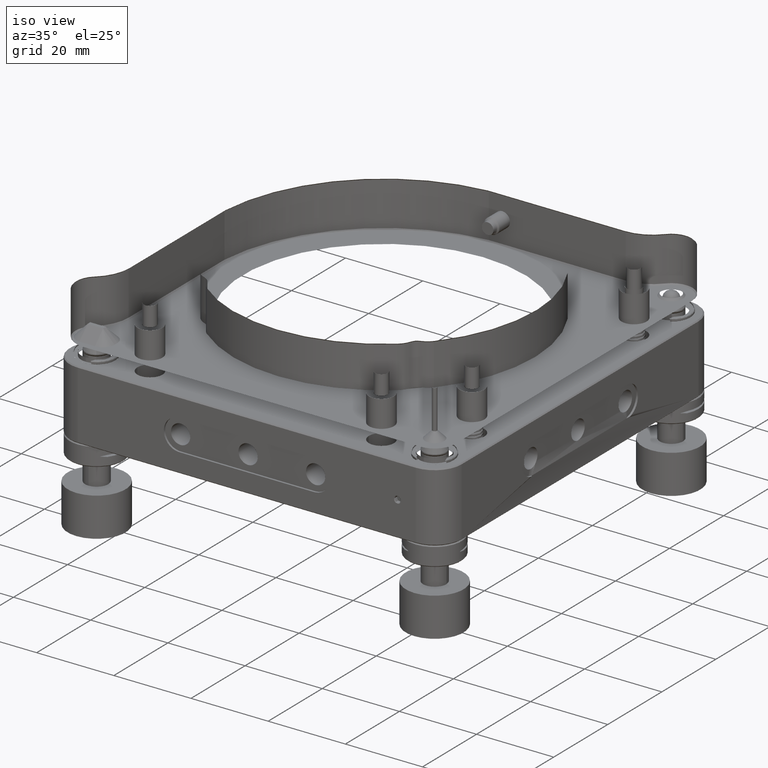
[diagram: clean part render]
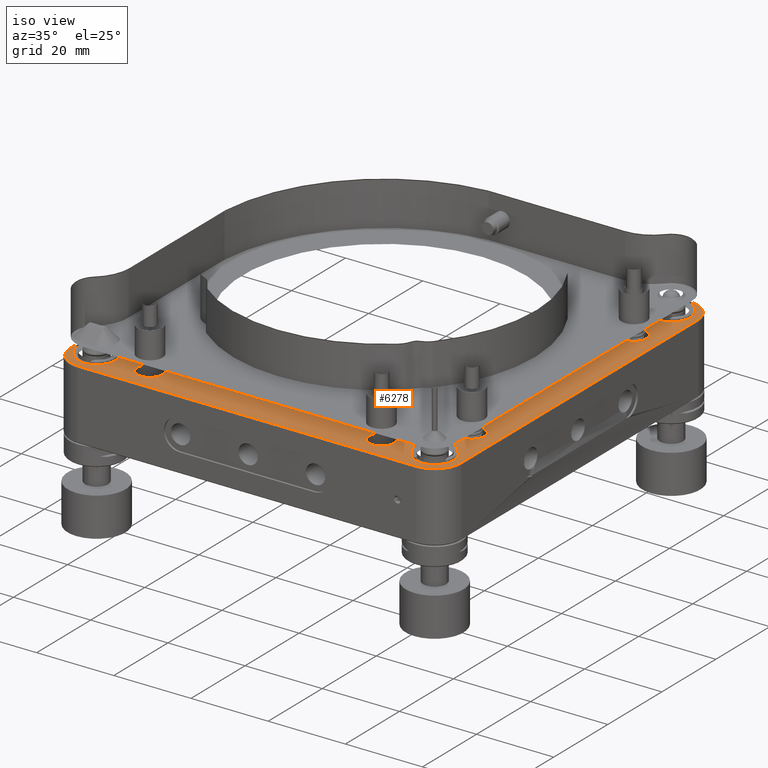
[diagram: same view with one face highlighted and labeled with its STEP entity id]
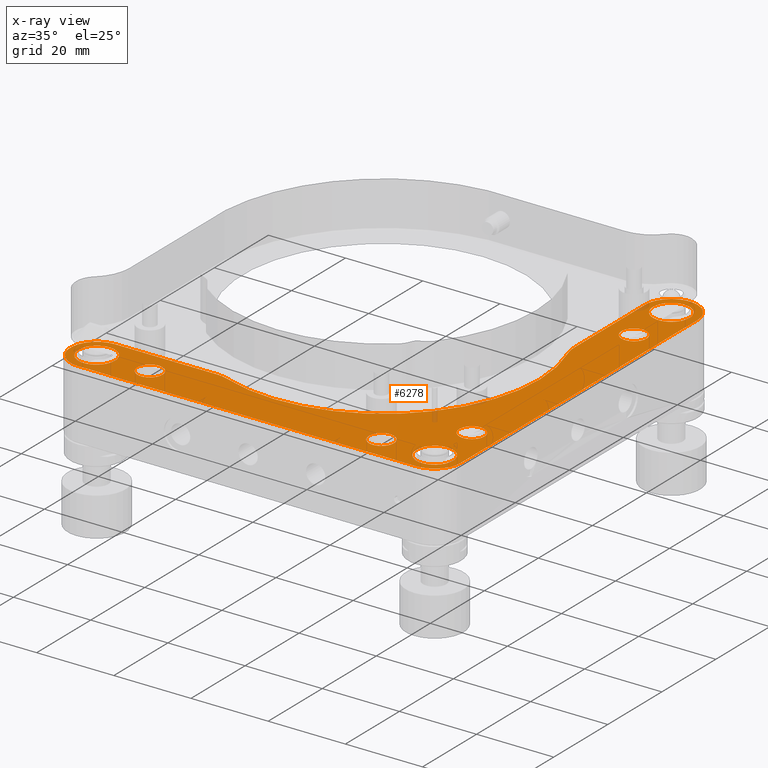
[diagram: x-ray of the same camera — body ghosted, the highlighted face saturated]
A machine part, iso view. The second image highlights one B-rep face of the part: STEP entity #6278.
The next image is the same camera in x-ray: the body ghosted, the highlighted face saturated — about 1% of this face is hidden behind the body in this view.
In plain terms, the highlighted planar face has unit normal (0, 0, 1).
Its self-contained STEP definition (entity closure, byte-faithful):
#12 = CARTESIAN_POINT ( 'NONE',  ( 47.59651432687579842, -46.67343432686198668, 9.000000000000007105 ) ) ;
#18 = AXIS2_PLACEMENT_3D ( 'NONE', #16891, #3433, #5997 ) ;
#59 = CARTESIAN_POINT ( 'NONE',  ( -41.68429196255694791, -39.54185982433703117, 9.000000000000003553 ) ) ;
#83 = CARTESIAN_POINT ( 'NONE',  ( -47.98439713549331032, -46.05805406400262569, 9.000000000000003553 ) ) ;
#173 = CARTESIAN_POINT ( 'NONE',  ( -46.33069932900261989, -47.82053226614686281, 9.000000000000003553 ) ) ;
#190 = CARTESIAN_POINT ( 'NONE',  ( 45.80657853214353281, -48.10669979792063344, 9.000000000000003553 ) ) ;
#201 = AXIS2_PLACEMENT_3D ( 'NONE', #1701, #8184, #5939 ) ;
#211 = VERTEX_POINT ( 'NONE', #10919 ) ;
#279 = CARTESIAN_POINT ( 'NONE',  ( 40.67289036228411447, -47.39035226864903905, 9.000000000000005329 ) ) ;
#328 = CARTESIAN_POINT ( 'NONE',  ( 39.49330020207312941, 41.79342146787220003, 9.000000000000003553 ) ) ;
#346 = DIRECTION ( 'NONE',  ( -1.000000000000000000, 0.000000000000000000, 0.000000000000000000 ) ) ;
#358 = CARTESIAN_POINT ( 'NONE',  ( 44.40367257876562235, -48.54993259778042614, 9.000000000000003553 ) ) ;
#380 = CARTESIAN_POINT ( 'NONE',  ( 26.74999999999998934, -43.79999999999999716, 9.000000000000003553 ) ) ;
#437 = CIRCLE ( 'NONE', #7497, 6.750000000017429613 ) ;
#445 = CARTESIAN_POINT ( 'NONE',  ( 40.92656567311966143, -47.59651432686166572, 9.000000000000001776 ) ) ;
#454 = EDGE_CURVE ( 'NONE', #8742, #3205, #6705, .T. ) ;
#534 = CARTESIAN_POINT ( 'NONE',  ( 39.05000000000001137, -43.79999999999999716, 9.000000000000003553 ) ) ;
#546 = AXIS2_PLACEMENT_3D ( 'NONE', #9938, #15339, #3216 ) ;
#594 = CARTESIAN_POINT ( 'NONE',  ( 42.29854848195957118, 39.29228683825713375, 9.000000000000003553 ) ) ;
#627 = CARTESIAN_POINT ( 'NONE',  ( 39.05000000000001137, -43.79999999999999716, 9.000000000000003553 ) ) ;
#681 = CARTESIAN_POINT ( 'NONE',  ( 42.12189704882112551, 39.35624815801423182, 9.000000000000005329 ) ) ;
#686 = VERTEX_POINT ( 'NONE', #6011 ) ;
#721 = CARTESIAN_POINT ( 'NONE',  ( 45.42523583424235056, -39.33637540043583414, 9.000000000000007105 ) ) ;
#808 = CARTESIAN_POINT ( 'NONE',  ( 45.51330696151428157, -39.36971392073352405, 9.000000000000003553 ) ) ;
#888 = CARTESIAN_POINT ( 'NONE',  ( -39.04999999999999005, -43.80000000000000426, 9.000000000000003553 ) ) ;
#896 = CARTESIAN_POINT ( 'NONE',  ( 44.54676974022938651, -39.09162921930206380, 9.000000000000003553 ) ) ;
#945 = VECTOR ( 'NONE', #9170, 1000.000000000000000 ) ;
#976 = CARTESIAN_POINT ( 'NONE',  ( -40.20964773134065240, -46.92710963770984023, 9.000000000000003553 ) ) ;
#987 = CARTESIAN_POINT ( 'NONE',  ( 39.65747229274133190, -41.47432705719561596, 9.000000000000003553 ) ) ;
#1034 = ORIENTED_EDGE ( 'NONE', *, *, #16131, .T. ) ;
#1047 = CARTESIAN_POINT ( 'NONE',  ( -46.53527064134317470, -39.91572909220285226, 9.000000000000007105 ) ) ;
#1061 = EDGE_LOOP ( 'NONE', ( #12968 ) ) ;
#1074 = CARTESIAN_POINT ( 'NONE',  ( 39.73816129198772984, 46.26382674027176023, 9.000000000000003553 ) ) ;
#1079 = CARTESIAN_POINT ( 'NONE',  ( 48.15748955266840881, 41.90245949543454174, 9.000000000000005329 ) ) ;
#1109 = CARTESIAN_POINT ( 'NONE',  ( 39.29231264066933704, -42.29848328568196081, 9.000000000000003553 ) ) ;
#1153 = CARTESIAN_POINT ( 'NONE',  ( -40.00348567313798753, -46.67343432688424798, 9.000000000000003553 ) ) ;
#1158 = CARTESIAN_POINT ( 'NONE',  ( 40.20964773135293768, 46.92710963771999388, 9.000000000000005329 ) ) ;
#1215 = CARTESIAN_POINT ( 'NONE',  ( -39.04999999999998295, -43.19580036840767434, 9.000000000000007105 ) ) ;
#1240 = FACE_BOUND ( 'NONE', #1722, .T. ) ;
#1298 = CARTESIAN_POINT ( 'NONE',  ( -48.23028193245022521, -42.08668256051229406, 9.000000000000007105 ) ) ;
#1325 = CARTESIAN_POINT ( 'NONE',  ( -41.92165415749143875, -48.16316061777354207, 9.000000000000001776 ) ) ;
#1390 = CARTESIAN_POINT ( 'NONE',  ( -45.62285434901833980, -39.41364699758191392, 9.000000000000003553 ) ) ;
#1401 = CARTESIAN_POINT ( 'NONE',  ( 48.30768735933067859, 42.29848328569064364, 9.000000000000000000 ) ) ;
#1413 = CARTESIAN_POINT ( 'NONE',  ( -44.10183628939198996, -48.55003370110978977, 9.000000000000005329 ) ) ;
#1417 = CARTESIAN_POINT ( 'NONE',  ( 47.98439713548867047, 46.05805406401060509, 9.000000000000001776 ) ) ;
#1501 = DIRECTION ( 'NONE',  ( -1.000000000000000000, 0.000000000000000000, 0.000000000000000000 ) ) ;
#1506 = CARTESIAN_POINT ( 'NONE',  ( 46.12567294280011509, 47.94252770726573942, 9.000000000000003553 ) ) ;
#1520 = CARTESIAN_POINT ( 'NONE',  ( 41.68429196256742841, -48.05814017567163177, 9.000000000000003553 ) ) ;
#1560 = DIRECTION ( 'NONE',  ( -0.000000000000000000, 0.000000000000000000, -1.000000000000000000 ) ) ;
#1581 = CARTESIAN_POINT ( 'NONE',  ( 45.80657853212729691, 39.49330020207326442, 9.000000000000005329 ) ) ;
#1592 = CARTESIAN_POINT ( 'NONE',  ( -45.52981354115004820, -48.22387003971916641, 9.000000000000005329 ) ) ;
#1605 = ORIENTED_EDGE ( 'NONE', *, *, #10644, .T. ) ;
#1610 = CARTESIAN_POINT ( 'NONE',  ( 42.54782795445914445, -48.38676546408353119, 9.000000000000005329 ) ) ;
#1635 = CIRCLE ( 'NONE', #6426, 9.749999999999994671 ) ;
#1664 = CARTESIAN_POINT ( 'NONE',  ( 42.54782795444975818, 39.21323453591647024, 9.000000000000005329 ) ) ;
#1674 = CARTESIAN_POINT ( 'NONE',  ( -43.19632742121601154, -48.54993259778045456, 9.000000000000005329 ) ) ;
#1679 = CARTESIAN_POINT ( 'NONE',  ( 48.10669979792616857, 45.80657853213092778, 9.000000000000000000 ) ) ;
#1692 = CARTESIAN_POINT ( 'NONE',  ( 40.32541900290380710, -47.04295968162963248, 9.000000000000003553 ) ) ;
#1701 = CARTESIAN_POINT ( 'NONE',  ( 46.80000000000002558, 17.59999999999999076, 9.000000000000000000 ) ) ;
#1722 = EDGE_LOOP ( 'NONE', ( #14655 ) ) ;
#1748 = CARTESIAN_POINT ( 'NONE',  ( 40.92656567312167937, 40.00348567313209003, 9.000000000000005329 ) ) ;
#1831 = CARTESIAN_POINT ( 'NONE',  ( 39.73651547129356487, 41.33494950416512381, 9.000000000000005329 ) ) ;
#1862 = CARTESIAN_POINT ( 'NONE',  ( 46.46634424494570936, -47.73185075308202840, 9.000000000000005329 ) ) ;
#2005 = CARTESIAN_POINT ( 'NONE',  ( 44.40367257877993268, 39.05006740221955397, 9.000000000000003553 ) ) ;
#2043 = CARTESIAN_POINT ( 'NONE',  ( 39.73816129199217784, -41.33617325972466006, 9.000000000000007105 ) ) ;
#2134 = CARTESIAN_POINT ( 'NONE',  ( 42.03401065401241254, -39.39045149390793199, 9.000000000000005329 ) ) ;
#2166 = CARTESIAN_POINT ( 'NONE',  ( 43.79999999999999716, -43.79999999999999716, 8.999999999975113241 ) ) ;
#2253 = DIRECTION ( 'NONE',  ( -0.000000000000000000, -0.000000000000000000, 1.000000000000000000 ) ) ;
#2273 = ORIENTED_EDGE ( 'NONE', *, *, #6785, .T. ) ;
#2307 = CARTESIAN_POINT ( 'NONE',  ( 41.79342146784929213, 48.10669979791553885, 9.000000000000005329 ) ) ;
#2313 = CARTESIAN_POINT ( 'NONE',  ( 41.06472935866566587, -39.91572909219676291, 9.000000000000005329 ) ) ;
#2366 = CARTESIAN_POINT ( 'NONE',  ( -48.38672123137696701, -42.54771618940385025, 9.000000000000003553 ) ) ;
#2393 = CARTESIAN_POINT ( 'NONE',  ( 42.01425878586120177, 48.20159123449366945, 9.000000000000005329 ) ) ;
#2394 = CARTESIAN_POINT ( 'NONE',  ( -14.16799999999999926, -37.67400000000003502, 9.000000000000005329 ) ) ;
#2400 = CARTESIAN_POINT ( 'NONE',  ( 47.86348452870377201, -41.33494950415840208, 9.000000000000003553 ) ) ;
#2455 = CARTESIAN_POINT ( 'NONE',  ( -47.94252770725370993, -41.47432705718230750, 9.000000000000005329 ) ) ;
#2463 = ORIENTED_EDGE ( 'NONE', *, *, #16204, .T. ) ;
#2477 = FACE_BOUND ( 'NONE', #11939, .T. ) ;
#2481 = CARTESIAN_POINT ( 'NONE',  ( 39.21327876862304862, 45.05228381057598597, 9.000000000000001776 ) ) ;
#2497 = EDGE_CURVE ( 'NONE', #8098, #4835, #5370, .T. ) ;
#2539 = CARTESIAN_POINT ( 'NONE',  ( -39.61560286451778268, -41.54194593596926666, 9.000000000000001776 ) ) ;
#2621 = CARTESIAN_POINT ( 'NONE',  ( -39.73651547129775707, -41.33494950415123270, 9.000000000000003553 ) ) ;
#2711 = CARTESIAN_POINT ( 'NONE',  ( -46.46634424494860838, -39.86814924691985595, 9.000000000000005329 ) ) ;
#2742 = CARTESIAN_POINT ( 'NONE',  ( 45.69754050455416206, 48.15748955267440579, 9.000000000000003553 ) ) ;
#2816 = CARTESIAN_POINT ( 'NONE',  ( 47.82053226614786468, 41.26930067099888788, 9.000000000000003553 ) ) ;
#2828 = CARTESIAN_POINT ( 'NONE',  ( -45.69754050456964478, -48.15748955266568032, 9.000000000000007105 ) ) ;
#2913 = CARTESIAN_POINT ( 'NONE',  ( -47.86348452870857528, -46.26505049583270335, 9.000000000000001776 ) ) ;
#2942 = CARTESIAN_POINT ( 'NONE',  ( -43.79999999999998295, -37.04999999999434834, 8.999999999995518252 ) ) ;
#2988 = CARTESIAN_POINT ( 'NONE',  ( 45.58574121413445823, 39.39840876550429272, 9.000000000000005329 ) ) ;
#3014 = CARTESIAN_POINT ( 'NONE',  ( 39.41364699758121759, -45.62285434901606607, 9.000000000000003553 ) ) ;
#3063 = LINE ( 'NONE', #12359, #15646 ) ;
#3081 = CARTESIAN_POINT ( 'NONE',  ( -47.73185075307859648, -46.46634424495277926, 9.000000000000005329 ) ) ;
#3089 = ORIENTED_EDGE ( 'NONE', *, *, #9333, .T. ) ;
#3187 = CARTESIAN_POINT ( 'NONE',  ( 39.49330020207239755, -45.80657853212947828, 9.000000000000001776 ) ) ;
#3205 = VERTEX_POINT ( 'NONE', #6367 ) ;
#3216 = DIRECTION ( 'NONE',  ( -1.000000000000000000, 0.000000000000000000, 0.000000000000000000 ) ) ;
#3352 = DIRECTION ( 'NONE',  ( -0.000000000000000000, -0.000000000000000000, -1.000000000000000000 ) ) ;
#3372 = EDGE_CURVE ( 'NONE', #15276, #5943, #9492, .T. ) ;
#3377 = CARTESIAN_POINT ( 'NONE',  ( 46.67343432687420091, -40.00348567313218240, 9.000000000000001776 ) ) ;
#3401 = CARTESIAN_POINT ( 'NONE',  ( 39.05000000000000426, 43.80000000000001137, 9.000000000000003553 ) ) ;
#3422 = CARTESIAN_POINT ( 'NONE',  ( 39.61560286451043567, 41.54194593599361696, 9.000000000000007105 ) ) ;
#3433 = DIRECTION ( 'NONE',  ( -0.000000000000000000, -0.000000000000000000, 1.000000000000000000 ) ) ;
#3463 = CARTESIAN_POINT ( 'NONE',  ( 41.97714565097493988, -39.41364699758645429, 9.000000000000007105 ) ) ;
#3475 = VERTEX_POINT ( 'NONE', #6039 ) ;
#3554 = CARTESIAN_POINT ( 'NONE',  ( 46.12567294280450625, -39.65747229273808472, 9.000000000000005329 ) ) ;
#3577 = CARTESIAN_POINT ( 'NONE',  ( 48.24374374582074410, -45.47812340817389298, 9.000000000000005329 ) ) ;
#3640 = CARTESIAN_POINT ( 'NONE',  ( 45.30145151803804282, -39.29228683825713375, 9.000000000000005329 ) ) ;
#3696 = CARTESIAN_POINT ( 'NONE',  ( -48.24374374582074410, -42.12187659182613686, 9.000000000000005329 ) ) ;
#3720 = CARTESIAN_POINT ( 'NONE',  ( -41.33494950415676072, -47.86348452870273462, 9.000000000000005329 ) ) ;
#3729 = CARTESIAN_POINT ( 'NONE',  ( 42.61281334777885377, -39.16123600341019539, 9.000000000000003553 ) ) ;
#3746 = CARTESIAN_POINT ( 'NONE',  ( 37.04999999998945270, 17.59999999999999076, 9.000000000000000000 ) ) ;
#3755 = CARTESIAN_POINT ( 'NONE',  ( 47.94252770725439206, -46.12567294281597441, 9.000000000000001776 ) ) ;
#3760 = CARTESIAN_POINT ( 'NONE',  ( 39.09168819624420621, -43.05308123970210232, 9.000000000000005329 ) ) ;
#3777 = CARTESIAN_POINT ( 'NONE',  ( 0.000000000000000000, -50.55000000000465832, 9.000000000000003553 ) ) ;
#3784 = CARTESIAN_POINT ( 'NONE',  ( -39.16116852331781928, -42.61298374493471641, 9.000000000000003553 ) ) ;
#3815 = CARTESIAN_POINT ( 'NONE',  ( 45.42523583423942313, 48.26362459956419571, 9.000000000000003553 ) ) ;
#3874 = CARTESIAN_POINT ( 'NONE',  ( -42.29854848195564188, -39.29228683825712665, 9.000000000000005329 ) ) ;
#3897 = CARTESIAN_POINT ( 'NONE',  ( -39.33638922315664388, -45.42527076081753989, 9.000000000000001776 ) ) ;
#3901 = CARTESIAN_POINT ( 'NONE',  ( 41.06472935865765095, 47.68427090779803024, 9.000000000000007105 ) ) ;
#3906 = EDGE_CURVE ( 'NONE', #12146, #8592, #3063, .T. ) ;
#3963 = CARTESIAN_POINT ( 'NONE',  ( -48.22387003971913799, -42.07018645884960506, 9.000000000000003553 ) ) ;
#3990 = CARTESIAN_POINT ( 'NONE',  ( 44.10183628937970468, 48.55003370110979688, 9.000000000000001776 ) ) ;
#4050 = CARTESIAN_POINT ( 'NONE',  ( -47.82053226614524277, -41.26930067099628019, 9.000000000000005329 ) ) ;
#4155 = CARTESIAN_POINT ( 'NONE',  ( 48.23028193245023942, 42.08668256051358014, 9.000000000000005329 ) ) ;
#4167 = DIRECTION ( 'NONE',  ( -0.000000000000000000, -0.000000000000000000, 1.000000000000000000 ) ) ;
#4168 = CARTESIAN_POINT ( 'NONE',  ( -48.10669979792965734, -45.80657853212495922, 9.000000000000005329 ) ) ;
#4189 = CARTESIAN_POINT ( 'NONE',  ( 37.67400000000002791, 14.16799999999999926, 9.000000000000005329 ) ) ;
#4266 = VERTEX_POINT ( 'NONE', #4189 ) ;
#4271 = CARTESIAN_POINT ( 'NONE',  ( 44.98718665219662682, -48.43876399658982024, 9.000000000000001776 ) ) ;
#4321 = CARTESIAN_POINT ( 'NONE',  ( 48.22387003971882535, 42.07018645884944874, 9.000000000000005329 ) ) ;
#4333 = CARTESIAN_POINT ( 'NONE',  ( -48.20159123449623451, -45.58574121413405322, 9.000000000000003553 ) ) ;
#4353 = CARTESIAN_POINT ( 'NONE',  ( 45.67834584251129115, -48.16316061777275337, 9.000000000000003553 ) ) ;
#4407 = CARTESIAN_POINT ( 'NONE',  ( 39.05000000000000426, 43.19580036839550274, 9.000000000000005329 ) ) ;
#4421 = CARTESIAN_POINT ( 'NONE',  ( 46.26382674027261288, 47.86183870801235685, 9.000000000000003553 ) ) ;
#4577 = CARTESIAN_POINT ( 'NONE',  ( 39.41364699758145207, 41.97714565098453221, 9.000000000000005329 ) ) ;
#4587 = LINE ( 'NONE', #11133, #9332 ) ;
#4605 = CARTESIAN_POINT ( 'NONE',  ( 39.39045360266084117, -45.56599467089863964, 9.000000000000001776 ) ) ;
#4675 = CARTESIAN_POINT ( 'NONE',  ( 37.04999999997887983, 0.000000000000000000, 9.000000000000003553 ) ) ;
#4708 = CARTESIAN_POINT ( 'NONE',  ( 45.69754050455735950, -39.44251044732838807, 9.000000000000001776 ) ) ;
#4809 = AXIS2_PLACEMENT_3D ( 'NONE', #9631, #4167, #1501 ) ;
#4835 = VERTEX_POINT ( 'NONE', #8303 ) ;
#4874 = CARTESIAN_POINT ( 'NONE',  ( 41.92165415748196011, -39.43683938223187369, 9.000000000000005329 ) ) ;
#4959 = CARTESIAN_POINT ( 'NONE',  ( 44.10183628938687406, -39.04996629889022586, 9.000000000000003553 ) ) ;
#4996 = DIRECTION ( 'NONE',  ( -1.000000000000000000, 0.000000000000000000, 0.000000000000000000 ) ) ;
#5050 = CARTESIAN_POINT ( 'NONE',  ( 40.93275040265881159, -40.01206006587786845, 9.000000000000003553 ) ) ;
#5111 = CARTESIAN_POINT ( 'NONE',  ( -39.39045360266081275, -42.03400532910132625, 9.000000000000007105 ) ) ;
#5137 = CARTESIAN_POINT ( 'NONE',  ( 45.05217204553679977, 48.38676546408355961, 9.000000000000003553 ) ) ;
#5142 = CARTESIAN_POINT ( 'NONE',  ( 46.66724959734122535, 40.01206006587355546, 9.000000000000003553 ) ) ;
#5221 = CARTESIAN_POINT ( 'NONE',  ( -39.65747229273958396, -46.12567294280608365, 9.000000000000005329 ) ) ;
#5249 = DIRECTION ( 'NONE',  ( -0.000000000000000000, -0.000000000000000000, -1.000000000000000000 ) ) ;
#5285 = CARTESIAN_POINT ( 'NONE',  ( -48.05814017566024177, -41.68429196255195279, 9.000000000000003553 ) ) ;
#5308 = FACE_BOUND ( 'NONE', #12972, .T. ) ;
#5312 = CARTESIAN_POINT ( 'NONE',  ( 41.54194593596302809, 47.98439713547445962, 9.000000000000003553 ) ) ;
#5364 = ORIENTED_EDGE ( 'NONE', *, *, #8128, .T. ) ;
#5370 = LINE ( 'NONE', #3777, #945 ) ;
#5374 = CARTESIAN_POINT ( 'NONE',  ( -40.01206006588360964, -40.93275040265454123, 9.000000000000005329 ) ) ;
#5386 = CIRCLE ( 'NONE', #18, 6.750000000017415402 ) ;
#5391 = VERTEX_POINT ( 'NONE', #14305 ) ;
#5396 = CARTESIAN_POINT ( 'NONE',  ( -48.55000000000001137, -44.40419963159234840, 9.000000000000007105 ) ) ;
#5400 = CARTESIAN_POINT ( 'NONE',  ( 40.93275040264623499, 47.58793993411392620, 9.000000000000003553 ) ) ;
#5413 = CARTESIAN_POINT ( 'NONE',  ( 47.39035226862685590, -46.92710963773387078, 9.000000000000005329 ) ) ;
#5462 = CARTESIAN_POINT ( 'NONE',  ( -48.15748955266568743, -41.90245949543306381, 9.000000000000007105 ) ) ;
#5505 = CARTESIAN_POINT ( 'NONE',  ( 48.54999999999999716, -43.79999999999999716, 9.000000000000003553 ) ) ;
#5537 = ORIENTED_EDGE ( 'NONE', *, *, #14066, .T. ) ;
#5541 = DIRECTION ( 'NONE',  ( 1.000000000000000000, 0.000000000000000000, 0.000000000000000000 ) ) ;
#5654 = AXIS2_PLACEMENT_3D ( 'NONE', #13671, #1560, #5541 ) ;
#5677 = CARTESIAN_POINT ( 'NONE',  ( 42.07018645884850372, -48.22387003971835640, 9.000000000000007105 ) ) ;
#5696 = VERTEX_POINT ( 'NONE', #380 ) ;
#5724 = CARTESIAN_POINT ( 'NONE',  ( 39.39840876550426430, 42.01425878586545082, 9.000000000000007105 ) ) ;
#5756 = CARTESIAN_POINT ( 'NONE',  ( 42.08669303848622434, -48.23028607926646316, 9.000000000000001776 ) ) ;
#5828 = CARTESIAN_POINT ( 'NONE',  ( 45.91570803742568785, 48.05814017567551844, 9.000000000000003553 ) ) ;
#5874 = EDGE_LOOP ( 'NONE', ( #5537 ) ) ;
#5912 = CIRCLE ( 'NONE', #10732, 3.250000000000002665 ) ;
#5928 = CARTESIAN_POINT ( 'NONE',  ( 41.33617325972395662, -47.86183870801038154, 9.000000000000003553 ) ) ;
#5939 = DIRECTION ( 'NONE',  ( 1.423362852083534886E-15, 1.000000000000000000, -1.779203565104418607E-16 ) ) ;
#5943 = VERTEX_POINT ( 'NONE', #9133 ) ;
#5987 = CARTESIAN_POINT ( 'NONE',  ( 43.05323025976517926, 39.09162921930207091, 9.000000000000005329 ) ) ;
#5997 = DIRECTION ( 'NONE',  ( -1.000000000000000000, 0.000000000000000000, 0.000000000000000000 ) ) ;
#6011 = CARTESIAN_POINT ( 'NONE',  ( 37.04999999997966142, 43.80000000000000426, 8.999999999984925836 ) ) ;
#6028 = CARTESIAN_POINT ( 'NONE',  ( 41.33494950414434044, -39.73651547130437933, 9.000000000000005329 ) ) ;
#6039 = CARTESIAN_POINT ( 'NONE',  ( -33.25000000000001421, -43.79999999999999005, 9.000000000000003553 ) ) ;
#6075 = CARTESIAN_POINT ( 'NONE',  ( 40.67289036230039301, 40.20964773133047743, 9.000000000000005329 ) ) ;
#6116 = CARTESIAN_POINT ( 'NONE',  ( 47.73185075308096970, -41.13365575505164173, 9.000000000000001776 ) ) ;
#6228 = CARTESIAN_POINT ( 'NONE',  ( -43.80000000000000426, -50.55000000000407567, 8.999999999997472244 ) ) ;
#6258 = CARTESIAN_POINT ( 'NONE',  ( -48.50831180375581653, -43.05308123970396394, 9.000000000000003553 ) ) ;
#6278 = ADVANCED_FACE ( 'NONE', ( #12031, #1240, #9199, #6638, #14770, #10703, #2477, #5308 ), #15751, .T. ) ;
#6281 = CARTESIAN_POINT ( 'NONE',  ( -40.73882732539129847, -47.43857027040314733, 9.000000000000000000 ) ) ;
#6291 = CARTESIAN_POINT ( 'NONE',  ( 47.43857027039616980, -40.73882732538063323, 9.000000000000005329 ) ) ;
#6299 = EDGE_CURVE ( 'NONE', #15872, #5391, #15850, .T. ) ;
#6367 = CARTESIAN_POINT ( 'NONE',  ( 48.54999999999999716, -43.79999999999999716, 9.000000000000003553 ) ) ;
#6369 = CARTESIAN_POINT ( 'NONE',  ( -40.55704031837549906, -47.27458099709926387, 9.000000000000005329 ) ) ;
#6373 = CARTESIAN_POINT ( 'NONE',  ( 39.05000000000001137, 44.10192144369531064, 9.000000000000007105 ) ) ;
#6379 = CARTESIAN_POINT ( 'NONE',  ( 39.37612996028130397, -42.07018645884840424, 9.000000000000003553 ) ) ;
#6380 = CARTESIAN_POINT ( 'NONE',  ( 44.98718665219873003, 39.16123600341018829, 9.000000000000001776 ) ) ;
#6406 = CARTESIAN_POINT ( 'NONE',  ( 48.23028193245021811, -45.51331743948770736, 9.000000000000007105 ) ) ;
#6426 = AXIS2_PLACEMENT_3D ( 'NONE', #7262, #12655, #11331 ) ;
#6438 = CARTESIAN_POINT ( 'NONE',  ( -39.91572909220039378, -41.06472935866295160, 9.000000000000003553 ) ) ;
#6464 = CARTESIAN_POINT ( 'NONE',  ( 42.03401065401215675, 48.20954850609209785, 9.000000000000005329 ) ) ;
#6470 = CARTESIAN_POINT ( 'NONE',  ( 47.86183870800705620, 41.33617325971749068, 9.000000000000005329 ) ) ;
#6526 = CARTESIAN_POINT ( 'NONE',  ( -47.86183870800468299, -41.33617325971619039, 9.000000000000007105 ) ) ;
#6553 = CARTESIAN_POINT ( 'NONE',  ( 41.97714565097646755, 48.18635300241459163, 9.000000000000003553 ) ) ;
#6614 = CARTESIAN_POINT ( 'NONE',  ( -39.41364699758339896, -41.97714565097812311, 9.000000000000005329 ) ) ;
#6638 = FACE_BOUND ( 'NONE', #16284, .T. ) ;
#6697 = CARTESIAN_POINT ( 'NONE',  ( -40.32541900290403447, -40.55704031837543511, 9.000000000000005329 ) ) ;
#6705 = B_SPLINE_CURVE_WITH_KNOTS ( 'NONE', 3,
 ( #15883, #10660, #3760, #9152, #1109, #14547, #11896, #14725, #6379, #15586, #14250, #987, #2043, #17093, #15853, #11774, #17011, #10450, #5050, #2313, #11682, #6028, #11426, #10096, #4874, #3463, #12926, #2134, #3729, #16836, #4959, #896, #14338, #3640, #721, #12839, #808, #9029, #4708, #10355, #3554, #8941, #15496, #3377, #7706, #8765, #6291, #15671, #13190, #6116, #2400, #8852, #16923, #17182, #14161, #15761, #7439, #14424, #7794, #9120 ),
 .UNSPECIFIED., .F., .F.,
 ( 4, 1, 1, 1, 1, 2, 2, 1, 2, 2, 2, 1, 2, 2, 1, 1, 1, 2, 2, 2, 1, 1, 1, 1, 2, 2, 1, 2, 2, 2, 1, 2, 2, 1, 1, 1, 2, 2, 4 ),
 ( 0.000000000000000000, 0.06250000000002489675, 0.09375000000003820555, 0.1093750000000448669, 0.1171875000000475037, 0.1210937500000488221, 0.1250000000000501543, 0.1562500000000569544, 0.1718750000000594802, 0.1875000000000619782, 0.2500000000000730527, 0.2812500000000781597, 0.2968750000000807132, 0.3125000000000832667, 0.3437500000000891509, 0.3593750000000911493, 0.3671875000000918710, 0.3710937500000919820, 0.3750000000000920930, 0.5000000000000413003, 0.5625000000000158762, 0.5937500000000037748, 0.6093749999999967804, 0.6171874999999935607, 0.6210937499999925615, 0.6249999999999915623, 0.6562499999999908962, 0.6718749999999911182, 0.6874999999999913403, 0.7499999999999888978, 0.7812499999999885647, 0.7968749999999884537, 0.8124999999999883427, 0.8437499999999880096, 0.8593749999999881206, 0.8671874999999891198, 0.8710937499999895639, 0.8749999999999900080, 1.000000000000000000 ),
 .UNSPECIFIED. ) ;
#6710 = ORIENTED_EDGE ( 'NONE', *, *, #12554, .T. ) ;
#6723 = CARTESIAN_POINT ( 'NONE',  ( -47.43857027040134966, -46.86117267461418834, 9.000000000000005329 ) ) ;
#6740 = CARTESIAN_POINT ( 'NONE',  ( 48.30768735933067859, -45.30151671431720217, 9.000000000000005329 ) ) ;
#6785 = EDGE_CURVE ( 'NONE', #4835, #9904, #437, .T. ) ;
#6786 = CARTESIAN_POINT ( 'NONE',  ( -41.47432705718622259, -39.65747229274413144, 9.000000000000005329 ) ) ;
#6893 = CARTESIAN_POINT ( 'NONE',  ( -45.51330696151490685, -48.23028607926647027, 9.000000000000003553 ) ) ;
#6909 = CARTESIAN_POINT ( 'NONE',  ( 39.73651547129298223, -46.26505049583616369, 9.000000000000003553 ) ) ;
#6938 = CARTESIAN_POINT ( 'NONE',  ( 43.80000000000000426, -29.99999999999997158, 9.000000000000003553 ) ) ;
#6970 = CARTESIAN_POINT ( 'NONE',  ( 45.67834584250184804, 39.43683938222367402, 9.000000000000001776 ) ) ;
#6979 = CARTESIAN_POINT ( 'NONE',  ( -47.68427090780153321, -46.53527064133972146, 9.000000000000003553 ) ) ;
#6997 = CARTESIAN_POINT ( 'NONE',  ( 42.17476416575931353, -48.26362459956416728, 9.000000000000003553 ) ) ;
#7048 = CARTESIAN_POINT ( 'NONE',  ( 41.47432705719928947, 39.65747229273750207, 9.000000000000003553 ) ) ;
#7060 = CARTESIAN_POINT ( 'NONE',  ( -42.01425878586340446, -48.20159123449483474, 9.000000000000001776 ) ) ;
#7064 = CARTESIAN_POINT ( 'NONE',  ( 48.18635300241830777, 45.62285434901659897, 9.000000000000003553 ) ) ;
#7078 = CARTESIAN_POINT ( 'NONE',  ( 39.05000000000000426, -44.40419963159425976, 9.000000000000003553 ) ) ;
#7132 = CARTESIAN_POINT ( 'NONE',  ( 39.16116852331781928, 42.61298374492253060, 9.000000000000005329 ) ) ;
#7167 = CARTESIAN_POINT ( 'NONE',  ( 46.05805406402738100, -47.98439713548127372, 9.000000000000003553 ) ) ;
#7221 = CARTESIAN_POINT ( 'NONE',  ( 39.39045360266081985, 42.03400532910170284, 9.000000000000005329 ) ) ;
#7255 = CARTESIAN_POINT ( 'NONE',  ( 46.26505049584687868, -47.86348452870169012, 9.000000000000007105 ) ) ;
#7260 = CIRCLE ( 'NONE', #11780, 3.250000000000002665 ) ;
#7262 = CARTESIAN_POINT ( 'NONE',  ( -17.59999999999999076, -46.80000000000002558, 8.999999999999996447 ) ) ;
#7307 = CARTESIAN_POINT ( 'NONE',  ( -17.59999999999998366, -37.05000000000002558, 8.999999999999998224 ) ) ;
#7314 = CARTESIAN_POINT ( 'NONE',  ( 42.07018645884804897, 39.37612996028165924, 9.000000000000005329 ) ) ;
#7398 = CARTESIAN_POINT ( 'NONE',  ( 41.90245949544541304, 39.44251044732796174, 9.000000000000005329 ) ) ;
#7439 = CARTESIAN_POINT ( 'NONE',  ( 48.20954639733918157, -42.03400532910167442, 9.000000000000007105 ) ) ;
#7464 = ORIENTED_EDGE ( 'NONE', *, *, #15965, .T. ) ;
#7497 = AXIS2_PLACEMENT_3D ( 'NONE', #2166, #2253, #4996 ) ;
#7528 = ORIENTED_EDGE ( 'NONE', *, *, #2497, .T. ) ;
#7540 = CARTESIAN_POINT ( 'NONE',  ( 40.54999999999997584, 30.00000000000002842, 9.000000000000003553 ) ) ;
#7627 = VERTEX_POINT ( 'NONE', #7540 ) ;
#7694 = CARTESIAN_POINT ( 'NONE',  ( -39.36971806754976200, -45.51331743948684760, 9.000000000000005329 ) ) ;
#7699 = CARTESIAN_POINT ( 'NONE',  ( 39.44251044732565958, 45.69754050455318861, 9.000000000000005329 ) ) ;
#7706 = CARTESIAN_POINT ( 'NONE',  ( 46.92710963771781252, -40.20964773135288084, 9.000000000000005329 ) ) ;
#7748 = ORIENTED_EDGE ( 'NONE', *, *, #6299, .T. ) ;
#7760 = CARTESIAN_POINT ( 'NONE',  ( -41.90245949543590598, -39.44251044733278633, 9.000000000000000000 ) ) ;
#7783 = CARTESIAN_POINT ( 'NONE',  ( -39.37612996028143186, -45.52981354115144796, 9.000000000000005329 ) ) ;
#7794 = CARTESIAN_POINT ( 'NONE',  ( 48.54999999999999005, -43.19580036839548143, 9.000000000000003553 ) ) ;
#7796 = CARTESIAN_POINT ( 'NONE',  ( 48.38672123137695991, 42.54771618941730793, 9.000000000000003553 ) ) ;
#7872 = CARTESIAN_POINT ( 'NONE',  ( -39.29231264066930862, -45.30151671431173099, 9.000000000000005329 ) ) ;
#7877 = CARTESIAN_POINT ( 'NONE',  ( 39.54185982432456115, 45.91570803742398965, 9.000000000000003553 ) ) ;
#7940 = CARTESIAN_POINT ( 'NONE',  ( -43.05323025975619800, -39.09162921930204959, 9.000000000000001776 ) ) ;
#7962 = CARTESIAN_POINT ( 'NONE',  ( -39.77946773385471602, -46.33069932900320964, 9.000000000000005329 ) ) ;
#8023 = CARTESIAN_POINT ( 'NONE',  ( -39.49330020207867875, -41.79342146785398882, 9.000000000000003553 ) ) ;
#8052 = CARTESIAN_POINT ( 'NONE',  ( 40.55704031836940260, 47.27458099709418349, 9.000000000000007105 ) ) ;
#8092 = AXIS2_PLACEMENT_3D ( 'NONE', #6938, #12339, #15249 ) ;
#8098 = VERTEX_POINT ( 'NONE', #6228 ) ;
#8110 = CARTESIAN_POINT ( 'NONE',  ( -44.40367257879016449, -39.05006740221956818, 9.000000000000005329 ) ) ;
#8128 = EDGE_CURVE ( 'NONE', #3205, #8742, #10008, .T. ) ;
#8141 = CARTESIAN_POINT ( 'NONE',  ( 47.27458099709526351, 47.04295968163165043, 9.000000000000003553 ) ) ;
#8184 = DIRECTION ( 'NONE',  ( -0.000000000000000000, 2.602085213965205711E-16, 1.000000000000000000 ) ) ;
#8220 = CARTESIAN_POINT ( 'NONE',  ( -48.54999999999999716, -43.80000000000000426, 9.000000000000003553 ) ) ;
#8224 = CARTESIAN_POINT ( 'NONE',  ( 48.55000000000001137, 44.40419963160046990, 9.000000000000005329 ) ) ;
#8239 = CARTESIAN_POINT ( 'NONE',  ( 45.56598934598834205, -48.20954850609206233, 9.000000000000003553 ) ) ;
#8303 = CARTESIAN_POINT ( 'NONE',  ( 43.79999999999999716, -50.55000000000953264, 8.999999999986043164 ) ) ;
#8306 = CARTESIAN_POINT ( 'NONE',  ( -41.79342146786124346, -48.10669979792195505, 9.000000000000003553 ) ) ;
#8310 = CARTESIAN_POINT ( 'NONE',  ( 47.73185075307991809, 46.46634424495049842, 9.000000000000005329 ) ) ;
#8390 = CARTESIAN_POINT ( 'NONE',  ( -45.91570803745276663, -48.05814017566027019, 9.000000000000001776 ) ) ;
#8408 = CARTESIAN_POINT ( 'NONE',  ( 39.16116852331782638, -44.98701625506721058, 9.000000000000001776 ) ) ;
#8466 = CARTESIAN_POINT ( 'NONE',  ( 40.01206006587210595, 40.93275040266168219, 9.000000000000003553 ) ) ;
#8488 = EDGE_LOOP ( 'NONE', ( #12882, #1605, #16791, #7464, #7528, #2273, #14950, #1034, #2463, #3089 ) ) ;
#8549 = CARTESIAN_POINT ( 'NONE',  ( 41.33617325972699774, 39.73816129198974068, 9.000000000000003553 ) ) ;
#8583 = CARTESIAN_POINT ( 'NONE',  ( 45.58574121413745672, -48.20159123449457894, 9.000000000000001776 ) ) ;
#8592 = VERTEX_POINT ( 'NONE', #2942 ) ;
#8732 = CARTESIAN_POINT ( 'NONE',  ( -48.54999999999999716, -43.80000000000000426, 9.000000000000003553 ) ) ;
#8742 = VERTEX_POINT ( 'NONE', #627 ) ;
#8765 = CARTESIAN_POINT ( 'NONE',  ( 47.27458099709525641, -40.55704031836943102, 9.000000000000005329 ) ) ;
#8790 = VERTEX_POINT ( 'NONE', #2394 ) ;
#8808 = CARTESIAN_POINT ( 'NONE',  ( 42.08669303848533616, 39.36971392073356668, 9.000000000000007105 ) ) ;
#8852 = CARTESIAN_POINT ( 'NONE',  ( 47.98439713548491170, -41.54194593598185747, 9.000000000000000000 ) ) ;
#8941 = CARTESIAN_POINT ( 'NONE',  ( 46.26382674027539821, -39.73816129199011016, 9.000000000000001776 ) ) ;
#8996 = CARTESIAN_POINT ( 'NONE',  ( -48.55000000000000426, -43.49807855628934306, 9.000000000000003553 ) ) ;
#9020 = CARTESIAN_POINT ( 'NONE',  ( -39.54185982433124025, -45.91570803743324802, 9.000000000000001776 ) ) ;
#9024 = CARTESIAN_POINT ( 'NONE',  ( 41.13365575505702054, 47.73185075308401792, 9.000000000000005329 ) ) ;
#9029 = CARTESIAN_POINT ( 'NONE',  ( 45.52981354115158297, -39.37612996028158818, 9.000000000000001776 ) ) ;
#9084 = CARTESIAN_POINT ( 'NONE',  ( -46.86117267462108060, -40.16142972960739144, 9.000000000000003553 ) ) ;
#9120 = CARTESIAN_POINT ( 'NONE',  ( 48.54999999999999716, -43.79999999999999716, 9.000000000000003553 ) ) ;
#9133 = CARTESIAN_POINT ( 'NONE',  ( 48.55000000000000426, 43.80000000000001137, 9.000000000000003553 ) ) ;
#9148 = CARTESIAN_POINT ( 'NONE',  ( 47.86183870800511642, -46.26382674028272390, 9.000000000000007105 ) ) ;
#9152 = CARTESIAN_POINT ( 'NONE',  ( 39.21327876862304862, -42.54771618940243627, 9.000000000000007105 ) ) ;
#9170 = DIRECTION ( 'NONE',  ( 1.000000000000000000, 0.000000000000000000, -0.000000000000000000 ) ) ;
#9175 = CARTESIAN_POINT ( 'NONE',  ( -39.04999999999999005, -43.80000000000000426, 9.000000000000003553 ) ) ;
#9199 = FACE_BOUND ( 'NONE', #5874, .T. ) ;
#9204 = CARTESIAN_POINT ( 'NONE',  ( 45.51330696151339339, 48.23028607926649158, 9.000000000000003553 ) ) ;
#9262 = CARTESIAN_POINT ( 'NONE',  ( -43.49816371060489928, -39.04996629889022586, 9.000000000000003553 ) ) ;
#9282 = CARTESIAN_POINT ( 'NONE',  ( -39.44251044732948230, -45.69754050455849637, 9.000000000000001776 ) ) ;
#9287 = CARTESIAN_POINT ( 'NONE',  ( 45.47810295117643165, 48.24375184198581223, 9.000000000000007105 ) ) ;
#9332 = VECTOR ( 'NONE', #12632, 1000.000000000000000 ) ;
#9333 = EDGE_CURVE ( 'NONE', #11845, #4266, #15173, .T. ) ;
#9347 = CARTESIAN_POINT ( 'NONE',  ( -45.58574121413604985, -39.39840876550451298, 9.000000000000005329 ) ) ;
#9437 = CARTESIAN_POINT ( 'NONE',  ( -39.39840876550530169, -42.01425878586208995, 9.000000000000003553 ) ) ;
#9464 = CARTESIAN_POINT ( 'NONE',  ( 46.67343432687211902, 47.59651432686781902, 9.000000000000003553 ) ) ;
#9477 = CARTESIAN_POINT ( 'NONE',  ( 47.04295968164073827, -47.27458099708722017, 9.000000000000007105 ) ) ;
#9492 = B_SPLINE_CURVE_WITH_KNOTS ( 'NONE', 3,
 ( #16201, #6373, #13359, #2481, #17444, #17271, #16028, #16113, #12120, #7699, #7877, #15847, #1074, #10534, #13450, #1158, #8052, #17177, #5400, #3901, #9024, #14510, #5312, #2307, #13093, #6553, #2393, #6464, #10707, #14688, #3990, #11861, #5137, #15939, #3815, #9287, #9204, #14596, #2742, #5828, #1506, #4421, #12547, #9464, #16456, #8141, #15037, #13874, #9808, #8310, #13537, #1417, #1679, #14867, #7064, #9723, #11224, #11056, #8224, #12298 ),
 .UNSPECIFIED., .F., .F.,
 ( 4, 1, 1, 1, 1, 2, 2, 1, 2, 2, 2, 1, 2, 2, 1, 1, 1, 2, 2, 2, 1, 1, 1, 1, 2, 2, 1, 2, 2, 2, 1, 2, 2, 1, 1, 1, 2, 2, 4 ),
 ( 0.000000000000000000, 0.06250000000003873291, 0.09375000000005868916, 0.1093750000000684452, 0.1171875000000733302, 0.1210937500000757727, 0.1250000000000782152, 0.1562500000000879852, 0.1718750000000931477, 0.1875000000000983102, 0.2500000000001209033, 0.2812500000001317280, 0.2968750000001371125, 0.3125000000001425526, 0.3437500000001540990, 0.3593750000001604827, 0.3671875000001627587, 0.3710937500001633138, 0.3750000000001638134, 0.5000000000001482148, 0.5625000000001411093, 0.5937500000001383338, 0.6093750000001362244, 0.6171875000001360023, 0.6210937500001354472, 0.6250000000001348921, 0.6562500000001233458, 0.6718750000001166844, 0.6875000000001101341, 0.7500000000000824896, 0.7812500000000682787, 0.7968750000000615064, 0.8125000000000547340, 0.8437500000000425215, 0.8593750000000369704, 0.8671875000000343059, 0.8710937500000330846, 0.8750000000000319744, 1.000000000000000000 ),
 .UNSPECIFIED. ) ;
#9550 = CARTESIAN_POINT ( 'NONE',  ( -45.42523583424443956, -48.26362459956417439, 9.000000000000001776 ) ) ;
#9566 = CARTESIAN_POINT ( 'NONE',  ( 48.15748955266614928, -45.69754050456570837, 9.000000000000005329 ) ) ;
#9576 = EDGE_LOOP ( 'NONE', ( #15318 ) ) ;
#9608 = CIRCLE ( 'NONE', #4809, 6.750000000010913936 ) ;
#9620 = CARTESIAN_POINT ( 'NONE',  ( 46.46634424495186977, 39.86814924692029649, 9.000000000000005329 ) ) ;
#9631 = CARTESIAN_POINT ( 'NONE',  ( -43.79999999999999005, -43.80000000000000426, 8.999999999990640376 ) ) ;
#9709 = CARTESIAN_POINT ( 'NONE',  ( 48.05814017566504504, 41.68429196255453917, 9.000000000000003553 ) ) ;
#9723 = CARTESIAN_POINT ( 'NONE',  ( 48.20159123449562344, 45.58574121413515456, 9.000000000000007105 ) ) ;
#9738 = CARTESIAN_POINT ( 'NONE',  ( 40.16142972960216184, -46.86117267461768421, 9.000000000000003553 ) ) ;
#9808 = CARTESIAN_POINT ( 'NONE',  ( 47.68427090779896105, 46.53527064134322444, 9.000000000000000000 ) ) ;
#9812 = CARTESIAN_POINT ( 'NONE',  ( 50.55000000002038973, -43.79999999999999716, 8.999999999984911625 ) ) ;
#9830 = EDGE_CURVE ( 'NONE', #5696, #5696, #7260, .T. ) ;
#9904 = VERTEX_POINT ( 'NONE', #9812 ) ;
#9920 = ORIENTED_EDGE ( 'NONE', *, *, #3372, .T. ) ;
#9921 = DIRECTION ( 'NONE',  ( -1.000000000000000000, 0.000000000000000000, 0.000000000000000000 ) ) ;
#9938 = CARTESIAN_POINT ( 'NONE',  ( 43.79999999999998295, 30.00000000000002842, 9.000000000000003553 ) ) ;
#10008 = B_SPLINE_CURVE_WITH_KNOTS ( 'NONE', 3,
 ( #5505, #13125, #10897, #16304, #6740, #14360, #3577, #6406, #11803, #9566, #17209, #3755, #9148, #12134, #12, #5413, #9477, #11152, #13722, #12564, #1862, #7255, #7167, #190, #4353, #11069, #8583, #8239, #4271, #358, #13977, #13888, #1610, #13802, #6997, #12395, #5756, #5677, #13636, #1520, #16471, #5928, #15052, #445, #279, #1692, #9738, #15134, #14970, #15308, #6909, #16557, #3187, #12651, #3014, #12312, #4605, #8408, #7078, #534 ),
 .UNSPECIFIED., .F., .F.,
 ( 4, 1, 1, 1, 1, 2, 2, 1, 2, 2, 2, 1, 2, 2, 1, 1, 1, 2, 2, 2, 1, 1, 1, 1, 2, 2, 1, 2, 2, 2, 1, 2, 2, 1, 1, 1, 2, 2, 4 ),
 ( 0.000000000000000000, 0.06249999999999159006, 0.09374999999998796796, 0.1093749999999859418, 0.1171874999999849426, 0.1210937499999851091, 0.1249999999999852895, 0.1562499999999886480, 0.1718749999999909517, 0.1874999999999932276, 0.2500000000000005551, 0.2812500000000042188, 0.2968750000000060507, 0.3125000000000078826, 0.3437500000000127121, 0.3593750000000153766, 0.3671875000000163758, 0.3710937500000172085, 0.3750000000000180966, 0.5000000000000164313, 0.5625000000000163203, 0.5937500000000168754, 0.6093750000000168754, 0.6171875000000165423, 0.6210937500000163203, 0.6250000000000160982, 0.6562500000000162093, 0.6718750000000156541, 0.6875000000000150990, 0.7500000000000119904, 0.7812500000000104361, 0.7968750000000092149, 0.8125000000000079936, 0.8437500000000063283, 0.8593750000000057732, 0.8671875000000058842, 0.8710937500000055511, 0.8750000000000052180, 1.000000000000000000 ),
 .UNSPECIFIED. ) ;
#10064 = DIRECTION ( 'NONE',  ( 0.000000000000000000, -1.000000000000000000, -0.000000000000000000 ) ) ;
#10096 = CARTESIAN_POINT ( 'NONE',  ( 41.79342146784495071, -39.49330020208731895, 9.000000000000003553 ) ) ;
#10137 = CARTESIAN_POINT ( 'NONE',  ( 41.68429196257357461, 39.54185982432857571, 9.000000000000005329 ) ) ;
#10355 = CARTESIAN_POINT ( 'NONE',  ( 45.91570803743125850, -39.54185982432932889, 9.000000000000005329 ) ) ;
#10450 = CARTESIAN_POINT ( 'NONE',  ( 40.73882732539659912, -40.16142972959525537, 9.000000000000005329 ) ) ;
#10506 = CARTESIAN_POINT ( 'NONE',  ( -47.39035226864514527, -40.67289036227812460, 9.000000000000001776 ) ) ;
#10529 = CARTESIAN_POINT ( 'NONE',  ( -41.13365575505245175, -47.73185075308153102, 9.000000000000003553 ) ) ;
#10534 = CARTESIAN_POINT ( 'NONE',  ( 39.77946773385520629, 46.33069932900423282, 9.000000000000005329 ) ) ;
#10541 = CARTESIAN_POINT ( 'NONE',  ( 46.26505049583450813, 39.73651547129364303, 9.000000000000005329 ) ) ;
#10593 = CARTESIAN_POINT ( 'NONE',  ( -45.80657853213587316, -39.49330020207436576, 9.000000000000001776 ) ) ;
#10618 = B_SPLINE_CURVE_WITH_KNOTS ( 'NONE', 3,
 ( #16442, #14517, #10869, #7796, #1401, #12193, #11039, #4155, #4321, #1079, #9709, #14940, #6470, #2816, #11867, #10957, #16361, #15107, #5142, #15022, #9620, #10541, #13693, #1581, #6970, #12368, #2988, #13777, #6380, #2005, #11123, #5987, #1664, #594, #15542, #681, #8808, #7314, #7398, #10137, #7048, #8549, #14123, #1748, #6075, #11469, #14033, #8466, #16527, #13857, #1831, #3422, #328, #12450, #4577, #5724, #7221, #7132, #4407, #15366 ),
 .UNSPECIFIED., .F., .F.,
 ( 4, 1, 1, 1, 1, 2, 2, 1, 2, 2, 2, 1, 2, 2, 1, 1, 1, 2, 2, 2, 1, 1, 1, 1, 2, 2, 1, 2, 2, 2, 1, 2, 2, 1, 1, 1, 2, 2, 4 ),
 ( 0.000000000000000000, 0.06250000000001544598, 0.09375000000002257916, 0.1093750000000270617, 0.1171875000000299760, 0.1210937500000307532, 0.1250000000000315303, 0.1562500000000383027, 0.1718750000000407729, 0.1875000000000432432, 0.2500000000000490719, 0.2812500000000515143, 0.2968750000000522360, 0.3125000000000529021, 0.3437500000000554556, 0.3593750000000570655, 0.3671875000000578426, 0.3710937500000573430, 0.3750000000000568434, 0.5000000000000323075, 0.5625000000000193179, 0.5937500000000137668, 0.6093750000000111022, 0.6171875000000096589, 0.6210937500000088818, 0.6250000000000079936, 0.6562500000000098810, 0.6718750000000114353, 0.6875000000000128786, 0.7500000000000193179, 0.7812500000000235367, 0.7968750000000250910, 0.8125000000000266454, 0.8437500000000300870, 0.8593750000000309752, 0.8671875000000313083, 0.8710937500000306422, 0.8750000000000299760, 1.000000000000000000 ),
 .UNSPECIFIED. ) ;
#10619 = CARTESIAN_POINT ( 'NONE',  ( -41.06472935866300844, -47.68427090780244271, 9.000000000000005329 ) ) ;
#10630 = ORIENTED_EDGE ( 'NONE', *, *, #14647, .T. ) ;
#10644 = EDGE_CURVE ( 'NONE', #8790, #12146, #1635, .T. ) ;
#10660 = CARTESIAN_POINT ( 'NONE',  ( 39.05000000000001847, -43.49807855628828435, 9.000000000000003553 ) ) ;
#10682 = CARTESIAN_POINT ( 'NONE',  ( -45.56598934598878259, -39.39045149390794620, 9.000000000000003553 ) ) ;
#10703 = FACE_BOUND ( 'NONE', #1061, .T. ) ;
#10707 = CARTESIAN_POINT ( 'NONE',  ( 42.61281334778694685, 48.43876399658983445, 9.000000000000003553 ) ) ;
#10732 = AXIS2_PLACEMENT_3D ( 'NONE', #17384, #5249, #9921 ) ;
#10769 = CARTESIAN_POINT ( 'NONE',  ( -46.05805406401719893, -39.61560286451206281, 9.000000000000003553 ) ) ;
#10791 = CARTESIAN_POINT ( 'NONE',  ( -46.92710963771188659, -47.39035226865303230, 9.000000000000003553 ) ) ;
#10799 = VERTEX_POINT ( 'NONE', #15664 ) ;
#10869 = CARTESIAN_POINT ( 'NONE',  ( 48.50831180375581653, 43.05308123972193357, 9.000000000000003553 ) ) ;
#10881 = CARTESIAN_POINT ( 'NONE',  ( -45.30145151804197923, -48.30771316174288899, 9.000000000000003553 ) ) ;
#10897 = CARTESIAN_POINT ( 'NONE',  ( 48.50831180375580942, -44.54691876029603748, 9.000000000000003553 ) ) ;
#10919 = CARTESIAN_POINT ( 'NONE',  ( 40.55000000000000426, -29.99999999999997158, 9.000000000000003553 ) ) ;
#10957 = CARTESIAN_POINT ( 'NONE',  ( 47.39035226866531758, 40.67289036229827559, 9.000000000000005329 ) ) ;
#10970 = CARTESIAN_POINT ( 'NONE',  ( -41.54194593597895135, -47.98439713548305008, 9.000000000000003553 ) ) ;
#11028 = VECTOR ( 'NONE', #10064, 1000.000000000000000 ) ;
#11039 = CARTESIAN_POINT ( 'NONE',  ( 48.24374374582076541, 42.12187659182860955, 9.000000000000007105 ) ) ;
#11051 = CARTESIAN_POINT ( 'NONE',  ( -47.27458099709819095, -47.04295968162762875, 9.000000000000001776 ) ) ;
#11056 = CARTESIAN_POINT ( 'NONE',  ( 48.43883147668219635, 44.98701625507344914, 9.000000000000005329 ) ) ;
#11069 = CARTESIAN_POINT ( 'NONE',  ( 45.62285434902101144, -48.18635300241637509, 9.000000000000007105 ) ) ;
#11123 = CARTESIAN_POINT ( 'NONE',  ( 43.49816371061002940, 39.04996629889021875, 9.000000000000001776 ) ) ;
#11133 = CARTESIAN_POINT ( 'NONE',  ( 50.55000000002117133, 0.000000000000000000, 9.000000000000003553 ) ) ;
#11134 = CARTESIAN_POINT ( 'NONE',  ( -42.03401065401176595, -48.20954850609208364, 9.000000000000005329 ) ) ;
#11152 = CARTESIAN_POINT ( 'NONE',  ( 46.86117267463710334, -47.43857027038210816, 9.000000000000003553 ) ) ;
#11224 = CARTESIAN_POINT ( 'NONE',  ( 48.20954639733918157, 45.56599467089846911, 9.000000000000005329 ) ) ;
#11331 = DIRECTION ( 'NONE',  ( -1.000000000000000000, 2.846725704167069772E-15, 0.000000000000000000 ) ) ;
#11404 = CARTESIAN_POINT ( 'NONE',  ( 29.99999999999999289, -43.79999999999999716, 9.000000000000003553 ) ) ;
#11426 = CARTESIAN_POINT ( 'NONE',  ( 41.54194593595720875, -39.61560286452934321, 9.000000000000003553 ) ) ;
#11469 = CARTESIAN_POINT ( 'NONE',  ( 40.32541900289566428, 40.55704031838063628, 9.000000000000005329 ) ) ;
#11674 = EDGE_CURVE ( 'NONE', #211, #211, #15483, .T. ) ;
#11682 = CARTESIAN_POINT ( 'NONE',  ( 41.13365575505868321, -39.86814924691492479, 9.000000000000005329 ) ) ;
#11764 = CARTESIAN_POINT ( 'NONE',  ( -40.93275040265466203, -47.58793993412087531, 9.000000000000005329 ) ) ;
#11774 = CARTESIAN_POINT ( 'NONE',  ( 40.20964773133464831, -40.67289036229200860, 9.000000000000005329 ) ) ;
#11780 = AXIS2_PLACEMENT_3D ( 'NONE', #11404, #3352, #346 ) ;
#11803 = CARTESIAN_POINT ( 'NONE',  ( 48.22387003971908825, -45.52981354115054557, 9.000000000000001776 ) ) ;
#11833 = CARTESIAN_POINT ( 'NONE',  ( -40.67289036228363130, -40.20964773134089398, 9.000000000000005329 ) ) ;
#11845 = VERTEX_POINT ( 'NONE', #3746 ) ;
#11856 = CARTESIAN_POINT ( 'NONE',  ( 0.000000000000000000, 0.000000000000000000, 9.000000000000003553 ) ) ;
#11861 = CARTESIAN_POINT ( 'NONE',  ( 44.54676974021686675, 48.50837078069794472, 9.000000000000003553 ) ) ;
#11867 = CARTESIAN_POINT ( 'NONE',  ( 47.59651432685151917, 40.92656567310739746, 9.000000000000007105 ) ) ;
#11896 = CARTESIAN_POINT ( 'NONE',  ( 39.35625625417927154, -42.12187659182586685, 9.000000000000005329 ) ) ;
#11921 = CARTESIAN_POINT ( 'NONE',  ( -39.43683938222684304, -41.92165415748723944, 9.000000000000005329 ) ) ;
#11939 = EDGE_LOOP ( 'NONE', ( #6710, #7748 ) ) ;
#11945 = CARTESIAN_POINT ( 'NONE',  ( -39.09168819624417068, -44.54691876028351061, 9.000000000000003553 ) ) ;
#12031 = FACE_OUTER_BOUND ( 'NONE', #8488, .T. ) ;
#12094 = CARTESIAN_POINT ( 'NONE',  ( -42.08669303848469667, -39.36971392073354536, 9.000000000000007105 ) ) ;
#12098 = DIRECTION ( 'NONE',  ( -1.000000000000000000, -0.000000000000000000, 0.000000000000000000 ) ) ;
#12115 = CARTESIAN_POINT ( 'NONE',  ( -44.54676974023834646, -48.50837078069795183, 9.000000000000005329 ) ) ;
#12120 = CARTESIAN_POINT ( 'NONE',  ( 39.37612996028192924, 45.52981354115213009, 9.000000000000007105 ) ) ;
#12134 = CARTESIAN_POINT ( 'NONE',  ( 47.82053226614180375, -46.33069932900877319, 9.000000000000007105 ) ) ;
#12146 = VERTEX_POINT ( 'NONE', #7307 ) ;
#12182 = CARTESIAN_POINT ( 'NONE',  ( -40.16142972960255264, -40.73882732539113505, 9.000000000000003553 ) ) ;
#12193 = CARTESIAN_POINT ( 'NONE',  ( 48.26361077684335044, 42.17472923918376893, 9.000000000000003553 ) ) ;
#12298 = CARTESIAN_POINT ( 'NONE',  ( 48.55000000000000426, 43.80000000000001137, 9.000000000000003553 ) ) ;
#12312 = CARTESIAN_POINT ( 'NONE',  ( 39.39840876550417192, -45.58574121413487035, 9.000000000000003553 ) ) ;
#12339 = DIRECTION ( 'NONE',  ( 0.000000000000000000, 0.000000000000000000, -1.000000000000000000 ) ) ;
#12359 = CARTESIAN_POINT ( 'NONE',  ( 0.000000000000000000, -37.05000000000001847, 9.000000000000003553 ) ) ;
#12368 = CARTESIAN_POINT ( 'NONE',  ( 45.62285434901530579, 39.41364699758150891, 9.000000000000005329 ) ) ;
#12395 = CARTESIAN_POINT ( 'NONE',  ( 42.12189704882285213, -48.24375184198579092, 9.000000000000005329 ) ) ;
#12450 = CARTESIAN_POINT ( 'NONE',  ( 39.43683938222360297, 41.92165415749787627, 9.000000000000003553 ) ) ;
#12461 = CARTESIAN_POINT ( 'NONE',  ( -48.16316061777803270, -45.67834584250047669, 9.000000000000007105 ) ) ;
#12547 = CARTESIAN_POINT ( 'NONE',  ( 46.33069932900625076, 47.82053226614380748, 9.000000000000005329 ) ) ;
#12554 = EDGE_CURVE ( 'NONE', #5391, #15872, #12941, .T. ) ;
#12564 = CARTESIAN_POINT ( 'NONE',  ( 46.53527064135118962, -47.68427090779193378, 9.000000000000005329 ) ) ;
#12632 = DIRECTION ( 'NONE',  ( -0.000000000000000000, 1.000000000000000000, 0.000000000000000000 ) ) ;
#12651 = CARTESIAN_POINT ( 'NONE',  ( 39.43683938222317664, -45.67834584250312702, 9.000000000000003553 ) ) ;
#12655 = DIRECTION ( 'NONE',  ( -0.000000000000000000, -0.000000000000000000, 1.000000000000000000 ) ) ;
#12839 = CARTESIAN_POINT ( 'NONE',  ( 45.47810295117812274, -39.35624815801420340, 9.000000000000003553 ) ) ;
#12882 = ORIENTED_EDGE ( 'NONE', *, *, #14945, .T. ) ;
#12926 = CARTESIAN_POINT ( 'NONE',  ( 42.01425878586041307, -39.39840876550690041, 9.000000000000005329 ) ) ;
#12941 = B_SPLINE_CURVE_WITH_KNOTS ( 'NONE', 3,
 ( #8732, #8996, #6258, #2366, #13156, #13420, #3696, #1298, #3963, #5462, #5285, #2455, #6526, #4050, #13508, #10506, #15817, #9084, #17414, #1047, #2711, #13246, #10769, #10593, #14568, #1390, #9347, #10682, #14479, #8110, #9262, #7940, #14658, #3874, #15908, #14747, #12094, #13334, #7760, #59, #6786, #16174, #17501, #16001, #11833, #6697, #12182, #5374, #6438, #17244, #2621, #2539, #8023, #11921, #6614, #9437, #5111, #3784, #1215, #9175 ),
 .UNSPECIFIED., .F., .F.,
 ( 4, 1, 1, 1, 1, 2, 2, 1, 2, 2, 2, 1, 2, 2, 1, 1, 1, 2, 2, 2, 1, 1, 1, 1, 2, 2, 1, 2, 2, 2, 1, 2, 2, 1, 1, 1, 2, 2, 4 ),
 ( 0.000000000000000000, 0.06250000000001680600, 0.09375000000002579881, 0.1093750000000300732, 0.1171875000000322242, 0.1210937500000326128, 0.1250000000000330014, 0.1562500000000387190, 0.1718750000000421607, 0.1875000000000456024, 0.2500000000000590639, 0.2812500000000652811, 0.2968750000000680012, 0.3125000000000707212, 0.3437500000000761058, 0.3593750000000779377, 0.3671875000000791034, 0.3710937500000797140, 0.3750000000000802691, 0.5000000000000935918, 0.5625000000001010303, 0.5937500000001053602, 0.6093750000001070255, 0.6171875000001075806, 0.6210937500001071365, 0.6250000000001068035, 0.6562500000000999201, 0.6718750000000968114, 0.6875000000000937028, 0.7500000000000801581, 0.7812500000000733857, 0.7968750000000700551, 0.8125000000000667244, 0.8437500000000592859, 0.8593750000000545120, 0.8671875000000516254, 0.8710937500000505151, 0.8750000000000492939, 1.000000000000000000 ),
 .UNSPECIFIED. ) ;
#12968 = ORIENTED_EDGE ( 'NONE', *, *, #9830, .T. ) ;
#12972 = EDGE_LOOP ( 'NONE', ( #5364, #15995 ) ) ;
#12989 = CARTESIAN_POINT ( 'NONE',  ( -39.04999999999999005, -43.80000000000000426, 9.000000000000003553 ) ) ;
#13089 = CARTESIAN_POINT ( 'NONE',  ( -39.35625625417926443, -45.47812340817218058, 9.000000000000003553 ) ) ;
#13093 = CARTESIAN_POINT ( 'NONE',  ( 41.92165415748448964, 48.16316061776981172, 9.000000000000005329 ) ) ;
#13125 = CARTESIAN_POINT ( 'NONE',  ( 48.55000000000000426, -44.10192144371067258, 9.000000000000005329 ) ) ;
#13156 = CARTESIAN_POINT ( 'NONE',  ( -48.30768735933067148, -42.29848328568279925, 9.000000000000005329 ) ) ;
#13190 = CARTESIAN_POINT ( 'NONE',  ( 47.68427090779891842, -41.06472935865766516, 9.000000000000003553 ) ) ;
#13246 = CARTESIAN_POINT ( 'NONE',  ( -46.26505049584108065, -39.73651547129450989, 9.000000000000007105 ) ) ;
#13269 = CARTESIAN_POINT ( 'NONE',  ( -39.21327876862304151, -45.05228381058677201, 9.000000000000003553 ) ) ;
#13276 = CIRCLE ( 'NONE', #5654, 40.25000000000002842 ) ;
#13334 = CARTESIAN_POINT ( 'NONE',  ( -42.07018645884924268, -39.37612996028105528, 9.000000000000005329 ) ) ;
#13359 = CARTESIAN_POINT ( 'NONE',  ( 39.09168819624419200, 44.54691876026913633, 9.000000000000005329 ) ) ;
#13420 = CARTESIAN_POINT ( 'NONE',  ( -48.26361077684335044, -42.17472923917954120, 9.000000000000003553 ) ) ;
#13450 = CARTESIAN_POINT ( 'NONE',  ( 40.00348567313614723, 46.67343432688029026, 9.000000000000005329 ) ) ;
#13508 = CARTESIAN_POINT ( 'NONE',  ( -47.59651432686192152, -40.92656567311781401, 9.000000000000007105 ) ) ;
#13532 = CARTESIAN_POINT ( 'NONE',  ( -46.12567294282141006, -47.94252770725375257, 9.000000000000005329 ) ) ;
#13537 = CARTESIAN_POINT ( 'NONE',  ( 47.86348452870594627, 46.26505049583729345, 9.000000000000005329 ) ) ;
#13636 = CARTESIAN_POINT ( 'NONE',  ( 41.90245949544188164, -48.15748955267216758, 9.000000000000001776 ) ) ;
#13671 = CARTESIAN_POINT ( 'NONE',  ( 0.000000000000000000, 0.000000000000000000, 9.000000000000008882 ) ) ;
#13693 = CARTESIAN_POINT ( 'NONE',  ( 46.05805406400574498, 39.61560286451055646, 9.000000000000001776 ) ) ;
#13705 = CARTESIAN_POINT ( 'NONE',  ( -42.61281334779932450, -48.43876399658983445, 9.000000000000005329 ) ) ;
#13722 = CARTESIAN_POINT ( 'NONE',  ( 46.66724959736767886, -47.58793993410436229, 9.000000000000007105 ) ) ;
#13777 = CARTESIAN_POINT ( 'NONE',  ( 45.56598934598826389, 39.39045149390795331, 9.000000000000005329 ) ) ;
#13786 = CARTESIAN_POINT ( 'NONE',  ( -46.26382674028614872, -47.86183870800467588, 9.000000000000001776 ) ) ;
#13802 = CARTESIAN_POINT ( 'NONE',  ( 42.29854848196506367, -48.30771316174286767, 9.000000000000005329 ) ) ;
#13857 = CARTESIAN_POINT ( 'NONE',  ( 39.86814924692033202, 41.13365575504831639, 9.000000000000003553 ) ) ;
#13874 = CARTESIAN_POINT ( 'NONE',  ( 47.58793993411542544, 46.66724959735517331, 9.000000000000005329 ) ) ;
#13888 = CARTESIAN_POINT ( 'NONE',  ( 43.05323025977771323, -48.50837078069793051, 9.000000000000003553 ) ) ;
#13977 = CARTESIAN_POINT ( 'NONE',  ( 43.49816371061718456, -48.55003370110976846, 9.000000000000003553 ) ) ;
#14033 = CARTESIAN_POINT ( 'NONE',  ( 40.16142972958792257, 40.73882732540024421, 9.000000000000003553 ) ) ;
#14066 = EDGE_CURVE ( 'NONE', #7627, #7627, #15244, .T. ) ;
#14123 = CARTESIAN_POINT ( 'NONE',  ( 41.26930067099529253, 39.77946773385625079, 9.000000000000005329 ) ) ;
#14161 = CARTESIAN_POINT ( 'NONE',  ( 48.18635300241734143, -41.97714565098142714, 9.000000000000007105 ) ) ;
#14250 = CARTESIAN_POINT ( 'NONE',  ( 39.54185982433344293, -41.68429196256889924, 9.000000000000001776 ) ) ;
#14282 = EDGE_CURVE ( 'NONE', #3475, #3475, #5912, .T. ) ;
#14305 = CARTESIAN_POINT ( 'NONE',  ( -48.54999999999999716, -43.80000000000000426, 9.000000000000003553 ) ) ;
#14338 = CARTESIAN_POINT ( 'NONE',  ( 45.05217204554617183, -39.21323453591646313, 9.000000000000003553 ) ) ;
#14360 = CARTESIAN_POINT ( 'NONE',  ( 48.26361077684335044, -45.42527076082048865, 9.000000000000003553 ) ) ;
#14424 = CARTESIAN_POINT ( 'NONE',  ( 48.43883147668218214, -42.61298374492252350, 9.000000000000003553 ) ) ;
#14479 = CARTESIAN_POINT ( 'NONE',  ( -44.98718665218225254, -39.16123600341017408, 9.000000000000003553 ) ) ;
#14510 = CARTESIAN_POINT ( 'NONE',  ( 41.33494950414764446, 47.86348452869781056, 9.000000000000007105 ) ) ;
#14517 = CARTESIAN_POINT ( 'NONE',  ( 48.54999999999999716, 43.49807855629959619, 9.000000000000001776 ) ) ;
#14547 = CARTESIAN_POINT ( 'NONE',  ( 39.33638922315666520, -42.17472923917909355, 9.000000000000007105 ) ) ;
#14556 = AXIS2_PLACEMENT_3D ( 'NONE', #11856, #16109, #17439 ) ;
#14568 = CARTESIAN_POINT ( 'NONE',  ( -45.67834584250685737, -39.43683938222433483, 9.000000000000003553 ) ) ;
#14596 = CARTESIAN_POINT ( 'NONE',  ( 45.52981354115198087, 48.22387003971808639, 9.000000000000005329 ) ) ;
#14647 = EDGE_CURVE ( 'NONE', #5943, #15276, #10618, .T. ) ;
#14655 = ORIENTED_EDGE ( 'NONE', *, *, #11674, .T. ) ;
#14658 = CARTESIAN_POINT ( 'NONE',  ( -42.54782795444301513, -39.21323453591646313, 9.000000000000003553 ) ) ;
#14688 = CARTESIAN_POINT ( 'NONE',  ( 43.19632742124056790, 48.54993259778046877, 9.000000000000007105 ) ) ;
#14725 = CARTESIAN_POINT ( 'NONE',  ( 39.36971806754979752, -42.08668256051215906, 9.000000000000003553 ) ) ;
#14747 = CARTESIAN_POINT ( 'NONE',  ( -42.12189704881988916, -39.35624815801423892, 9.000000000000005329 ) ) ;
#14770 = FACE_BOUND ( 'NONE', #9576, .T. ) ;
#14863 = CARTESIAN_POINT ( 'NONE',  ( -48.20954639733918157, -45.56599467089870359, 9.000000000000007105 ) ) ;
#14867 = CARTESIAN_POINT ( 'NONE',  ( 48.16316061777600055, 45.67834584250397967, 9.000000000000001776 ) ) ;
#14940 = CARTESIAN_POINT ( 'NONE',  ( 47.94252770725749002, 41.47432705718433255, 9.000000000000003553 ) ) ;
#14945 = EDGE_CURVE ( 'NONE', #4266, #8790, #13276, .T. ) ;
#14950 = ORIENTED_EDGE ( 'NONE', *, *, #16081, .T. ) ;
#14952 = CARTESIAN_POINT ( 'NONE',  ( -48.18635300241952990, -45.62285434901449577, 9.000000000000003553 ) ) ;
#14970 = CARTESIAN_POINT ( 'NONE',  ( 39.91572909220023035, -46.53527064134146940, 9.000000000000001776 ) ) ;
#15022 = CARTESIAN_POINT ( 'NONE',  ( 46.53527064133434976, 39.91572909219402021, 9.000000000000001776 ) ) ;
#15037 = CARTESIAN_POINT ( 'NONE',  ( 47.43857027039619823, 46.86117267462120850, 9.000000000000003553 ) ) ;
#15052 = CARTESIAN_POINT ( 'NONE',  ( 41.26930067099581123, -47.82053226614533514, 9.000000000000005329 ) ) ;
#15107 = CARTESIAN_POINT ( 'NONE',  ( 46.86117267460345914, 40.16142972958976998, 9.000000000000003553 ) ) ;
#15117 = CARTESIAN_POINT ( 'NONE',  ( -41.97714565098065265, -48.18635300241682984, 9.000000000000005329 ) ) ;
#15134 = CARTESIAN_POINT ( 'NONE',  ( 40.01206006588330411, -46.66724959735241640, 9.000000000000003553 ) ) ;
#15173 = CIRCLE ( 'NONE', #201, 9.749999999999994671 ) ;
#15201 = CARTESIAN_POINT ( 'NONE',  ( -45.05217204555289356, -48.38676546408354540, 9.000000000000003553 ) ) ;
#15244 = CIRCLE ( 'NONE', #546, 3.250000000000009770 ) ;
#15249 = DIRECTION ( 'NONE',  ( -1.000000000000000000, 0.000000000000000000, 0.000000000000000000 ) ) ;
#15276 = VERTEX_POINT ( 'NONE', #3401 ) ;
#15308 = CARTESIAN_POINT ( 'NONE',  ( 39.86814924692061624, -46.46634424495105264, 9.000000000000003553 ) ) ;
#15318 = ORIENTED_EDGE ( 'NONE', *, *, #14282, .T. ) ;
#15339 = DIRECTION ( 'NONE',  ( 0.000000000000000000, 0.000000000000000000, -1.000000000000000000 ) ) ;
#15366 = CARTESIAN_POINT ( 'NONE',  ( 39.05000000000000426, 43.80000000000001137, 9.000000000000003553 ) ) ;
#15483 = CIRCLE ( 'NONE', #8092, 3.250000000000002665 ) ;
#15496 = CARTESIAN_POINT ( 'NONE',  ( 46.33069932900571075, -39.77946773385620816, 9.000000000000005329 ) ) ;
#15542 = CARTESIAN_POINT ( 'NONE',  ( 42.17476416575639320, 39.33637540043584835, 9.000000000000005329 ) ) ;
#15586 = CARTESIAN_POINT ( 'NONE',  ( 39.44251044733075418, -41.90245949544276272, 9.000000000000005329 ) ) ;
#15646 = VECTOR ( 'NONE', #12098, 1000.000000000000000 ) ;
#15664 = CARTESIAN_POINT ( 'NONE',  ( 50.55000000001759730, 43.80000000000000426, 8.999999999983996801 ) ) ;
#15671 = CARTESIAN_POINT ( 'NONE',  ( 47.58793993411538992, -40.93275040264626341, 9.000000000000003553 ) ) ;
#15751 = PLANE ( 'NONE',  #14556 ) ;
#15761 = CARTESIAN_POINT ( 'NONE',  ( 48.20159123449509053, -42.01425878586381657, 9.000000000000007105 ) ) ;
#15817 = CARTESIAN_POINT ( 'NONE',  ( -47.04295968163156516, -40.32541900290679138, 9.000000000000005329 ) ) ;
#15847 = CARTESIAN_POINT ( 'NONE',  ( 39.65747229273434016, 46.12567294279878638, 9.000000000000005329 ) ) ;
#15850 = B_SPLINE_CURVE_WITH_KNOTS ( 'NONE', 3,
 ( #888, #17085, #11945, #13269, #7872, #3897, #13089, #7694, #7783, #9282, #9020, #5221, #15935, #7962, #1153, #976, #6369, #6281, #11764, #10619, #10529, #3720, #10970, #8306, #1325, #15117, #7060, #11134, #13705, #1674, #1413, #12115, #15201, #10881, #9550, #16197, #6893, #1592, #2828, #8390, #13532, #13786, #173, #17523, #10791, #11051, #6723, #16451, #6979, #3081, #2913, #83, #4168, #12461, #14952, #4333, #14863, #16288, #5396, #8220 ),
 .UNSPECIFIED., .F., .F.,
 ( 4, 1, 1, 1, 1, 2, 2, 1, 2, 2, 2, 1, 2, 2, 1, 1, 1, 2, 2, 2, 1, 1, 1, 1, 2, 2, 1, 2, 2, 2, 1, 2, 2, 1, 1, 1, 2, 2, 4 ),
 ( 0.000000000000000000, 0.06250000000001576517, 0.09375000000002423062, 0.1093750000000282552, 0.1171875000000302675, 0.1210937500000310169, 0.1250000000000317801, 0.1562500000000290323, 0.1718750000000279499, 0.1875000000000268674, 0.2500000000000210387, 0.2812500000000177081, 0.2968750000000164313, 0.3125000000000151545, 0.3437500000000114908, 0.3593750000000099365, 0.3671875000000091593, 0.3710937500000094369, 0.3750000000000097145, 0.4999999999999962252, 0.5624999999999902300, 0.5937499999999877875, 0.6093749999999860112, 0.6171874999999861222, 0.6210937499999861222, 0.6249999999999861222, 0.6562499999999886757, 0.6718749999999904521, 0.6874999999999923395, 0.7500000000000023315, 0.7812500000000077716, 0.7968750000000104361, 0.8125000000000132117, 0.8437500000000186517, 0.8593750000000216493, 0.8671875000000228706, 0.8710937500000226485, 0.8750000000000224265, 1.000000000000000000 ),
 .UNSPECIFIED. ) ;
#15853 = CARTESIAN_POINT ( 'NONE',  ( 40.00348567313390191, -40.92656567311564686, 9.000000000000007105 ) ) ;
#15872 = VERTEX_POINT ( 'NONE', #12989 ) ;
#15883 = CARTESIAN_POINT ( 'NONE',  ( 39.05000000000001137, -43.79999999999999716, 9.000000000000003553 ) ) ;
#15908 = CARTESIAN_POINT ( 'NONE',  ( -42.17476416575428289, -39.33637540043584124, 9.000000000000005329 ) ) ;
#15935 = CARTESIAN_POINT ( 'NONE',  ( -39.73816129199106939, -46.26382674027641428, 9.000000000000003553 ) ) ;
#15939 = CARTESIAN_POINT ( 'NONE',  ( 45.30145151803260006, 48.30771316174288899, 9.000000000000003553 ) ) ;
#15965 = EDGE_CURVE ( 'NONE', #8592, #8098, #9608, .T. ) ;
#15995 = ORIENTED_EDGE ( 'NONE', *, *, #454, .T. ) ;
#16001 = CARTESIAN_POINT ( 'NONE',  ( -40.92656567309529692, -40.00348567315212023, 9.000000000000005329 ) ) ;
#16028 = CARTESIAN_POINT ( 'NONE',  ( 39.35625625417927864, 45.47812340817023369, 9.000000000000005329 ) ) ;
#16081 = EDGE_CURVE ( 'NONE', #9904, #10799, #4587, .T. ) ;
#16109 = DIRECTION ( 'NONE',  ( 0.000000000000000000, 0.000000000000000000, 1.000000000000000000 ) ) ;
#16113 = CARTESIAN_POINT ( 'NONE',  ( 39.36971806754980463, 45.51331743948586706, 9.000000000000007105 ) ) ;
#16131 = EDGE_CURVE ( 'NONE', #10799, #686, #5386, .T. ) ;
#16174 = CARTESIAN_POINT ( 'NONE',  ( -41.33617325971867729, -39.73816129199397551, 9.000000000000001776 ) ) ;
#16197 = CARTESIAN_POINT ( 'NONE',  ( -45.47810295117936619, -48.24375184198579092, 9.000000000000005329 ) ) ;
#16201 = CARTESIAN_POINT ( 'NONE',  ( 39.05000000000000426, 43.80000000000001137, 9.000000000000003553 ) ) ;
#16204 = EDGE_CURVE ( 'NONE', #686, #11845, #16805, .T. ) ;
#16284 = EDGE_LOOP ( 'NONE', ( #9920, #10630 ) ) ;
#16288 = CARTESIAN_POINT ( 'NONE',  ( -48.43883147668217504, -44.98701625506529211, 9.000000000000001776 ) ) ;
#16304 = CARTESIAN_POINT ( 'NONE',  ( 48.38672123137694570, -45.05228381059616538, 9.000000000000003553 ) ) ;
#16361 = CARTESIAN_POINT ( 'NONE',  ( 47.04295968162148256, 40.32541900289671588, 9.000000000000005329 ) ) ;
#16442 = CARTESIAN_POINT ( 'NONE',  ( 48.55000000000000426, 43.80000000000001137, 9.000000000000003553 ) ) ;
#16451 = CARTESIAN_POINT ( 'NONE',  ( -47.58793993411945422, -46.66724959734966660, 9.000000000000003553 ) ) ;
#16456 = CARTESIAN_POINT ( 'NONE',  ( 46.92710963771779831, 47.39035226864508132, 9.000000000000005329 ) ) ;
#16471 = CARTESIAN_POINT ( 'NONE',  ( 41.47432705719446489, -47.94252770726267698, 9.000000000000005329 ) ) ;
#16527 = CARTESIAN_POINT ( 'NONE',  ( 39.91572909219311072, 41.06472935866749907, 9.000000000000001776 ) ) ;
#16557 = CARTESIAN_POINT ( 'NONE',  ( 39.61560286450941959, -46.05805406400864399, 9.000000000000003553 ) ) ;
#16791 = ORIENTED_EDGE ( 'NONE', *, *, #3906, .T. ) ;
#16805 = LINE ( 'NONE', #4675, #11028 ) ;
#16836 = CARTESIAN_POINT ( 'NONE',  ( 43.19632742122627889, -39.05006740221956818, 9.000000000000007105 ) ) ;
#16891 = CARTESIAN_POINT ( 'NONE',  ( 43.80000000000001137, 43.80000000000000426, 8.999999999975138110 ) ) ;
#16923 = CARTESIAN_POINT ( 'NONE',  ( 48.10669979792336193, -41.79342146786340351, 9.000000000000000000 ) ) ;
#17011 = CARTESIAN_POINT ( 'NONE',  ( 40.55704031837852597, -40.32541900289987069, 9.000000000000003553 ) ) ;
#17085 = CARTESIAN_POINT ( 'NONE',  ( -39.04999999999999005, -44.10192144370352452, 9.000000000000001776 ) ) ;
#17093 = CARTESIAN_POINT ( 'NONE',  ( 39.77946773385578183, -41.26930067099679178, 9.000000000000003553 ) ) ;
#17177 = CARTESIAN_POINT ( 'NONE',  ( 40.73882732538056217, 47.43857027039429397, 9.000000000000003553 ) ) ;
#17182 = CARTESIAN_POINT ( 'NONE',  ( 48.16316061777436630, -41.92165415749273905, 9.000000000000005329 ) ) ;
#17209 = CARTESIAN_POINT ( 'NONE',  ( 48.05814017566111573, -45.91570803744589568, 9.000000000000005329 ) ) ;
#17244 = CARTESIAN_POINT ( 'NONE',  ( -39.86814924691820039, -41.13365575505525840, 9.000000000000005329 ) ) ;
#17271 = CARTESIAN_POINT ( 'NONE',  ( 39.33638922315665809, 45.42527076081417903, 9.000000000000007105 ) ) ;
#17384 = CARTESIAN_POINT ( 'NONE',  ( -30.00000000000001421, -43.79999999999999005, 9.000000000000003553 ) ) ;
#17414 = CARTESIAN_POINT ( 'NONE',  ( -46.66724959735508094, -40.01206006588742525, 9.000000000000003553 ) ) ;
#17439 = DIRECTION ( 'NONE',  ( 1.000000000000000000, 0.000000000000000000, -0.000000000000000000 ) ) ;
#17444 = CARTESIAN_POINT ( 'NONE',  ( 39.29231264066930862, 45.30151671430546401, 9.000000000000005329 ) ) ;
#17501 = CARTESIAN_POINT ( 'NONE',  ( -41.26930067100187927, -39.77946773385122725, 9.000000000000005329 ) ) ;
#17523 = CARTESIAN_POINT ( 'NONE',  ( -46.67343432688652172, -47.59651432685548400, 9.000000000000003553 ) ) ;